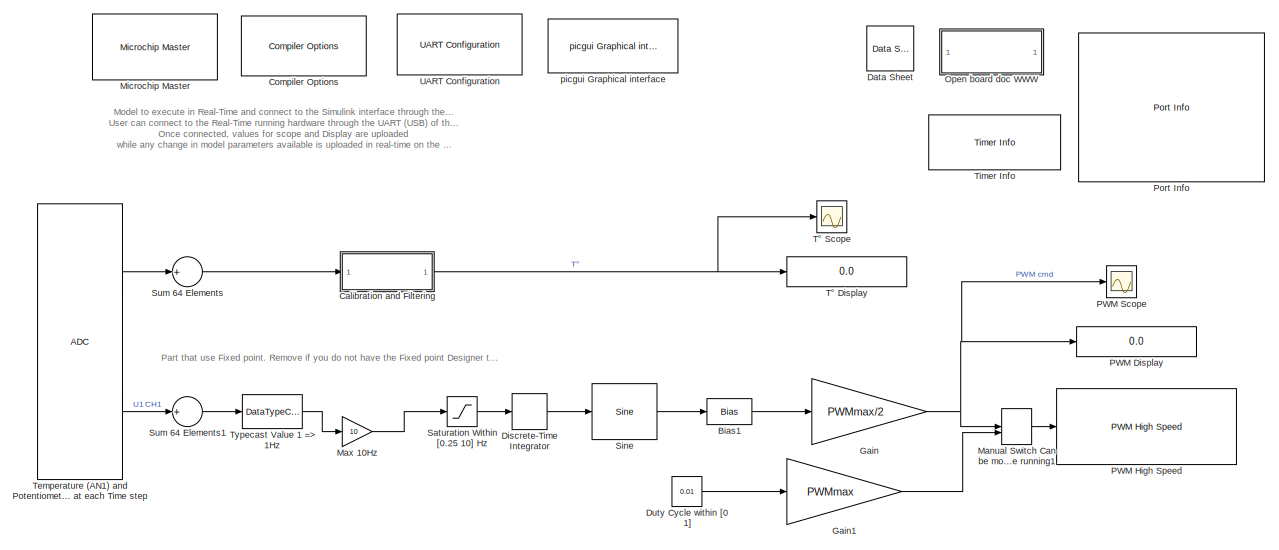
[diagram: root canvas - part 1/2, full width, top band]
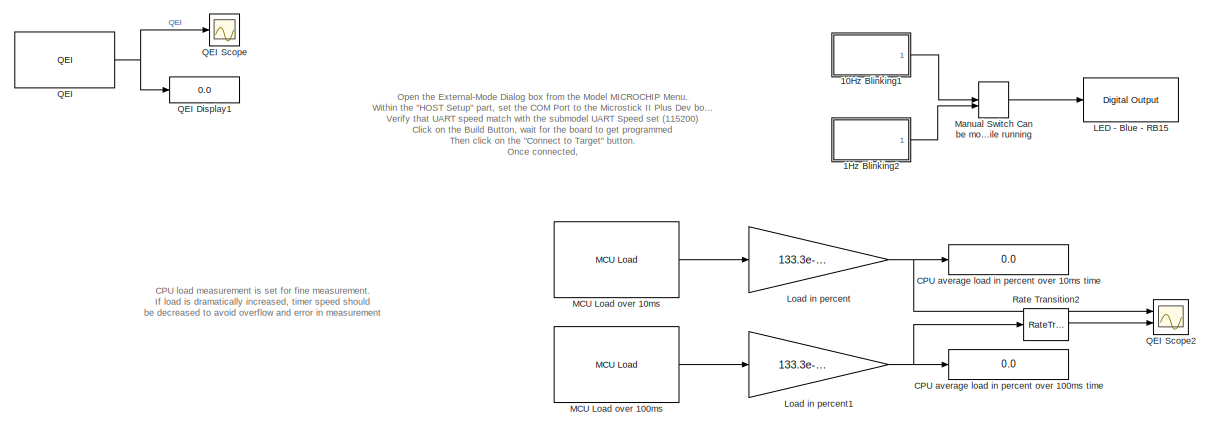
[diagram: root canvas - part 2/2, full width, bottom band]
MODEL slx_1a8b5fbcef37
KIND model
CONFIG AbsTol = auto
CONFIG FixedStep = 0.01
CONFIG MaxStep = auto
CONFIG MinStep = auto
CONFIG RelTol = 1e-3
CONFIG SampleTimeConstraint = Unconstrained
CONFIG Solver = FixedStepDiscrete
CONFIG SolverMode = Auto
CONFIG SolverName = FixedStepDiscrete
CONFIG StartTime = 0.0
CONFIG StopTime = inf
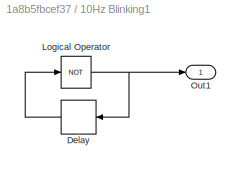
BLOCK [SubSystem] 10Hz Blinking1
  Ports = [0, 1]
  RequestExecContextInheritance = off
  Variant = off
BLOCK [Delay] 10Hz Blinking1/Delay
  DelayLength = 1
  InitialCondition = 0
  InputPortMap = u0
  InputProcessing = Inherited
  Ports = [1, 1]
  SampleTime = .05
BLOCK [Logic] 10Hz Blinking1/Logical Operator
  AllPortsSameDT = off
  Operator = NOT
  OutDataTypeStr = boolean
  Ports = [1, 1]
BLOCK [Outport] 10Hz Blinking1/Out1
  IconDisplay = Port number
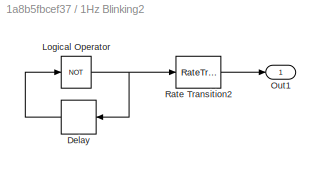
BLOCK [SubSystem] 1Hz Blinking2
  Ports = [0, 1]
  RequestExecContextInheritance = off
  Variant = off
BLOCK [Delay] 1Hz Blinking2/Delay
  DelayLength = 1
  InitialCondition = 0
  InputPortMap = u0
  InputProcessing = Inherited
  Ports = [1, 1]
  SampleTime = .5
BLOCK [Logic] 1Hz Blinking2/Logical Operator
  AllPortsSameDT = off
  Operator = NOT
  OutDataTypeStr = boolean
  Ports = [1, 1]
BLOCK [Outport] 1Hz Blinking2/Out1
  IconDisplay = Port number
BLOCK [RateTransition] 1Hz Blinking2/Rate Transition2
  Deterministic = off
  OutPortSampleTime = .05
BLOCK [Bias] Bias1
  Bias = 1
BLOCK [Display] CPU average load in percent over 100ms time
  Decimation = 1
  Format = long
  Ports = [1]
BLOCK [Display] CPU average load in percent over 10ms time
  Decimation = 1
  Format = long
  Ports = [1]
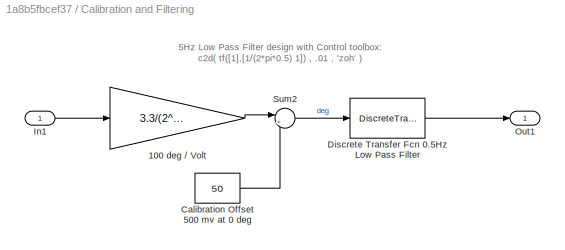
BLOCK [SubSystem] Calibration and Filtering
  Ports = [1, 1]
  RequestExecContextInheritance = off
  Variant = off
BLOCK [Gain] Calibration and Filtering/100 deg // Volt 
  Gain = 3.3/(2^16) * 100
  OutDataTypeStr = single
  ParamDataTypeStr = Inherit: Inherit via internal rule
  SaturateOnIntegerOverflow = off
BLOCK [Constant] Calibration and Filtering/Calibration Offset 500 mv at 0 deg
  OutDataTypeStr = Inherit: Inherit via back propagation
  SampleTime = -1
  Value = 50
BLOCK [DiscreteTransferFcn] Calibration and Filtering/Discrete Transfer Fcn 0.5Hz Low Pass Filter
  Denominator = [1 -0.96907]
  InputPortMap = u0
  Numerator = [0.030928]
  Ports = [1, 1]
BLOCK [Inport] Calibration and Filtering/In1
  IconDisplay = Port number
BLOCK [Outport] Calibration and Filtering/Out1
  IconDisplay = Port number
BLOCK [Sum] Calibration and Filtering/Sum2
  AccumDataTypeStr = Inherit: Same as first input
  IconShape = round
  InputSameDT = off
  Inputs = |+-
  OutDataTypeStr = Inherit: Inherit via internal rule
  Ports = [2, 1]
  SaturateOnIntegerOverflow = off
BLOCK [Reference] Compiler Options  REF=MCHP_Blockset/System Configuration/Compiler Options
  Ports = []
  Priority = 1
  SourceBlock = MCHP_Blockset/System Configuration/Compiler Options
BLOCK [Reference] Data Sheet  REF=MCHP_Blockset/System Info/Data Sheet
  AttributesFormatString = %<cpy_MCHP_Id>
  Ports = []
  SourceBlock = MCHP_Blockset/System Info/Data Sheet
BLOCK [DiscreteIntegrator] Discrete-Time Integrator
  ICPrevOutput = DiscIntNeverNeededParam
  ICPrevScaledInput = DiscIntNeverNeededParam
  InitialConditionSetting = State (most efficient)
  IntegratorMethod = Accumulation: Forward Euler
  OutDataTypeStr = fixdt(0,16,16)
  Ports = [1, 1]
  SampleTime = .01
  gainval = 1
BLOCK [Constant] Duty Cycle within [0 1]
  OutDataTypeStr = fixdt(0,16,16)
  Value = 0.01
BLOCK [Gain] Gain
  Gain = PWMmax/2
  OutDataTypeStr = uint16
  ParamDataTypeStr = Inherit: Inherit via internal rule
  RndMeth = Simplest
  SaturateOnIntegerOverflow = off
BLOCK [Gain] Gain1
  Gain = PWMmax
  OutDataTypeStr = uint16
  ParamDataTypeStr = Inherit: Inherit via internal rule
  RndMeth = Simplest
  SaturateOnIntegerOverflow = off
BLOCK [Reference] LED - Blue - RB15  REF=MCHP_Blockset/Digital IO/Digital Output
  Ports = [1]
  SourceBlock = MCHP_Blockset/Digital IO/Digital Output
BLOCK [Gain] Load in percent
  Gain = 133.3e-9 / .01 * 100
  OutDataTypeStr = single
  OutMax = [20]
  OutMin = [0]
  ParamDataTypeStr = Inherit: Inherit from 'Gain'
  SaturateOnIntegerOverflow = off
BLOCK [Gain] Load in percent1
  Gain = 133.3e-9 / .1 * 100
  OutDataTypeStr = single
  OutMax = [20]
  OutMin = [0]
  ParamDataTypeStr = Inherit: Inherit from 'Gain'
  SaturateOnIntegerOverflow = off
BLOCK [Reference] MCU Load over 100ms  REF=MCHP_Blockset/Profiling/MCU Load
  Ports = [0, 1]
  SourceBlock = MCHP_Blockset/Profiling/MCU Load
  SourceType = MCU Load (Profile execution time)
BLOCK [Reference] MCU Load over 10ms  REF=MCHP_Blockset/Profiling/MCU Load
  Ports = [0, 1]
  SourceBlock = MCHP_Blockset/Profiling/MCU Load
  SourceType = MCU Load (Profile execution time)
BLOCK [ManualSwitch] Manual Switch Can be modified while running
BLOCK [ManualSwitch] Manual Switch Can be modified while running1
BLOCK [Gain] Max 10Hz
  Gain = 10
  OutDataTypeStr = fixdt(0,16)
  OutMax = [20]
  OutMin = [0]
  ParamDataTypeStr = fixdt(1,16,8)
  SaturateOnIntegerOverflow = off
BLOCK [Reference] Microchip Master  REF=MCHP_Blockset/System Configuration/Microchip Master
  Ports = []
  Priority = 1
  SourceBlock = MCHP_Blockset/System Configuration/Microchip Master
BLOCK [SubSystem] Open board doc WWW
  OpenFcn = web('www.microchip.com/www.microchip.com/en556208','-browser');\npause(1);\nweb('www.microchip.com/TCAD0014178791','-browser');
  Ports = []
  RequestExecContextInheritance = off
  Variant = off
BLOCK [Display] PWM Display
  Decimation = 1
  Format = long
  Ports = [1]
BLOCK [Reference] PWM High Speed  REF=MCHP_Blockset/PWM IO/PWM High Speed
  Ports = [1]
  SourceBlock = MCHP_Blockset/PWM IO/PWM High Speed
BLOCK [Scope] PWM Scope
  Ports = [1]
  ScopeSpecificationString = Simulink.scopes.TimeScopeBlockCfg('CurrentConfiguration', extmgr.ConfigurationSet(extmgr.Configuration('Core','General UI',true),extmgr.Configuration('Core','Source UI',true),extmgr.Configuration('Sources','WiredSimulink',true,'DataLoggingLimitDataPoints',true,'DataLoggingMaxPoints','300','DataLoggingVariableName','ScopeData1'),extmgr.Configuration('Visuals','Time Domain',true,'SerializedDisplays'...<+1679ch>
BLOCK [Reference] Port Info  REF=MCHP_Blockset/System Info/Port Info
  Ports = []
  SourceBlock = MCHP_Blockset/System Info/Port Info
BLOCK [Reference] QEI  REF=MCHP_Blockset/QEI/QEI
  Ports = [0, 1]
  SourceBlock = MCHP_Blockset/QEI/QEI
  SourceType = Output Driver for Quadrature Encoder Interface (QEI) peripheral
BLOCK [Display] QEI Display1
  Decimation = 1
  Format = long
  Ports = [1]
BLOCK [Scope] QEI Scope
  Ports = [1]
  ScopeSpecificationString = Simulink.scopes.TimeScopeBlockCfg('CurrentConfiguration', extmgr.ConfigurationSet(extmgr.Configuration('Core','General UI',true),extmgr.Configuration('Core','Source UI',true),extmgr.Configuration('Sources','WiredSimulink',true,'DataLoggingLimitDataPoints',true,'DataLoggingMaxPoints','300','DataLoggingVariableName','ScopeData1'),extmgr.Configuration('Visuals','Time Domain',true,'SerializedDisplays'...<+1608ch>
BLOCK [Scope] QEI Scope2
  NumInputPorts = 2
  Ports = [2]
  ScopeSpecificationString = Simulink.scopes.TimeScopeBlockCfg('CurrentConfiguration', extmgr.ConfigurationSet(extmgr.Configuration('Core','General UI',true),extmgr.Configuration('Core','Source UI',true),extmgr.Configuration('Sources','WiredSimulink',true,'DataLoggingLimitDataPoints',true,'DataLoggingMaxPoints','300','DataLoggingVariableName','ScopeData2'),extmgr.Configuration('Visuals','Time Domain',true,'SerializedDisplays'...<+1668ch>
BLOCK [RateTransition] Rate Transition2
  Deterministic = off
BLOCK [Saturate] Saturation Within [0.25 10] Hz
  InputPortMap = u0
  LowerLimit = 0.25 * .01
  Ports = [1, 1]
  UpperLimit = 10 * .01
BLOCK [Reference] Sine  REF=simulink/Lookup
Tables/Sine
  Ports = [1, 1]
  SourceBlock = simulink/Lookup\nTables/Sine
  SourceType = Sine and Cosine
BLOCK [Sum] Sum 64 Elements
  InputSameDT = off
  Inputs = +
  OutDataTypeStr = Inherit: Inherit via internal rule
  Ports = [1, 1]
  SaturateOnIntegerOverflow = off
BLOCK [Sum] Sum 64 Elements1
  InputSameDT = off
  Inputs = +
  OutDataTypeStr = Inherit: Inherit via internal rule
  Ports = [1, 1]
  SaturateOnIntegerOverflow = off
BLOCK [Reference] Temperature (AN1) and Potentiometer (AN0) 64 X 2 Sample&Convert at each Time step  REF=MCHP_Blockset/Analog IO/ADC
  Ports = [0, 2]
  Priority = 5
  SourceBlock = MCHP_Blockset/Analog IO/ADC
BLOCK [Reference] Timer Info  REF=MCHP_Blockset/System Info/Timer Info
  Ports = []
  SourceBlock = MCHP_Blockset/System Info/Timer Info
BLOCK [DataTypeConversion] Typecast Value 1 => 1Hz
  ConvertRealWorld = Stored Integer (SI)
  OutDataTypeStr = fixdt(0,16,2^-16 * .01,0)
  RndMeth = Floor
  SaturateOnIntegerOverflow = off
BLOCK [Display] T° Display
  Decimation = 1
  Format = long
  Ports = [1]
BLOCK [Scope] T° Scope
  Ports = [1]
  ScopeSpecificationString = Simulink.scopes.TimeScopeBlockCfg('CurrentConfiguration', extmgr.ConfigurationSet(extmgr.Configuration('Core','General UI',true),extmgr.Configuration('Core','Source UI',true),extmgr.Configuration('Sources','WiredSimulink',true,'DataLoggingLimitDataPoints',true,'DataLoggingMaxPoints','300'),extmgr.Configuration('Visuals','Time Domain',true,'SerializedDisplays',{struct('MinYLimReal','23.5205','MaxYL...<+1606ch>
BLOCK [Reference] UART Configuration  REF=MCHP_Blockset/BUS UART/UART Configuration
  Ports = []
  SourceBlock = MCHP_Blockset/BUS UART/UART Configuration
  SourceType = Configuration for UART peripheral
BLOCK [Reference] picgui Graphical interface  REF=MCHP_Blockset/BUS UART/picgui
Graphical interface
  Ports = []
  SourceBlock = MCHP_Blockset/BUS UART/picgui\nGraphical interface
ANNOTATION (root): CPU load measurement is set for fine measurement. If load is dramatically increased, timer speed should be decreased to avoid overflow and error in measurement
ANNOTATION (root): Model to execute in Real-Time and connect to the Simulink interface through the External-Mode interface.. User can connect to the Real-Time running hardware through the UART (USB) of the board. Once connected, values for scope and Display are uploaded while any change in model parameters available is uploaded in real-time on the target.
ANNOTATION (root): Open the External-Mode Dialog box from the Model MICROCHIP Menu. Within the "HOST Setup" part, set the COM Port to the Microstick II Plus Dev board UART (through USB) Verify that UART speed match with the submodel UART Speed set (115200) Click on the Build Button, wait for the board to get programmed Then click on the "Connect to Target" button. Once connected, - you can see uploaded values withi ...<+106ch>
ANNOTATION (root): Part that use Fixed point. Remove if you do not have the Fixed point Designer toolbox
ANNOTATION Calibration and Filtering: 5Hz Low Pass Filter design with Control toolbox: c2d( tf([1],[1/(2*pi*0.5) 1]) , .01 , 'zoh' )
LINE 10Hz Blinking1/Delay:1 -> 10Hz Blinking1/Logical Operator:1
NET 10Hz Blinking1/Logical Operator:1 -> 10Hz Blinking1/Delay:1, 10Hz Blinking1/Out1:1
LINE 10Hz Blinking1:1 -> Manual Switch Can be modified while running:1
LINE 1Hz Blinking2/Delay:1 -> 1Hz Blinking2/Logical Operator:1
NET 1Hz Blinking2/Logical Operator:1 -> 1Hz Blinking2/Delay:1, 1Hz Blinking2/Rate Transition2:1
LINE 1Hz Blinking2/Rate Transition2:1 -> 1Hz Blinking2/Out1:1
LINE 1Hz Blinking2:1 -> Manual Switch Can be modified while running:2
LINE Bias1:1 -> Gain:1
LINE Calibration and Filtering/100 deg // Volt :1 -> Calibration and Filtering/Sum2:1
LINE Calibration and Filtering/Calibration Offset 500 mv at 0 deg:1 -> Calibration and Filtering/Sum2:2
LINE Calibration and Filtering/Discrete Transfer Fcn 0.5Hz Low Pass Filter:1 -> Calibration and Filtering/Out1:1
LINE Calibration and Filtering/In1:1 -> Calibration and Filtering/100 deg // Volt :1
LINE Calibration and Filtering/Sum2:1 -> Calibration and Filtering/Discrete Transfer Fcn 0.5Hz Low Pass Filter:1
NET Calibration and Filtering:1 -> T° Display:1, T° Scope:1
LINE Discrete-Time Integrator:1 -> Sine:1
LINE Duty Cycle within [0 1]:1 -> Gain1:1
LINE Gain1:1 -> Manual Switch Can be modified while running1:2
NET Gain:1 -> Manual Switch Can be modified while running1:1, PWM Display:1, PWM Scope:1
NET Load in percent1:1 -> CPU average load in percent over 100ms time:1, Rate Transition2:1
NET Load in percent:1 -> CPU average load in percent over 10ms time:1, QEI Scope2:1
LINE MCU Load over 100ms:1 -> Load in percent1:1
LINE MCU Load over 10ms:1 -> Load in percent:1
LINE Manual Switch Can be modified while running1:1 -> PWM High Speed:1
LINE Manual Switch Can be modified while running:1 -> LED - Blue - RB15:1
LINE Max 10Hz:1 -> Saturation Within [0.25 10] Hz:1
NET QEI:1 -> QEI Display1:1, QEI Scope:1
LINE Rate Transition2:1 -> QEI Scope2:2
LINE Saturation Within [0.25 10] Hz:1 -> Discrete-Time Integrator:1
LINE Sine:1 -> Bias1:1
LINE Sum 64 Elements1:1 -> Typecast Value 1 => 1Hz:1
LINE Sum 64 Elements:1 -> Calibration and Filtering:1
LINE Temperature (AN1) and Potentiometer (AN0) 64 X 2 Sample&Convert at each Time step:1 -> Sum 64 Elements:1
LINE Temperature (AN1) and Potentiometer (AN0) 64 X 2 Sample&Convert at each Time step:2 -> Sum 64 Elements1:1
LINE Typecast Value 1 => 1Hz:1 -> Max 10Hz:1
note: NET lines group one-source signal fan-out (src -> all destinations, sorted); 1:1 wires keep LINE
